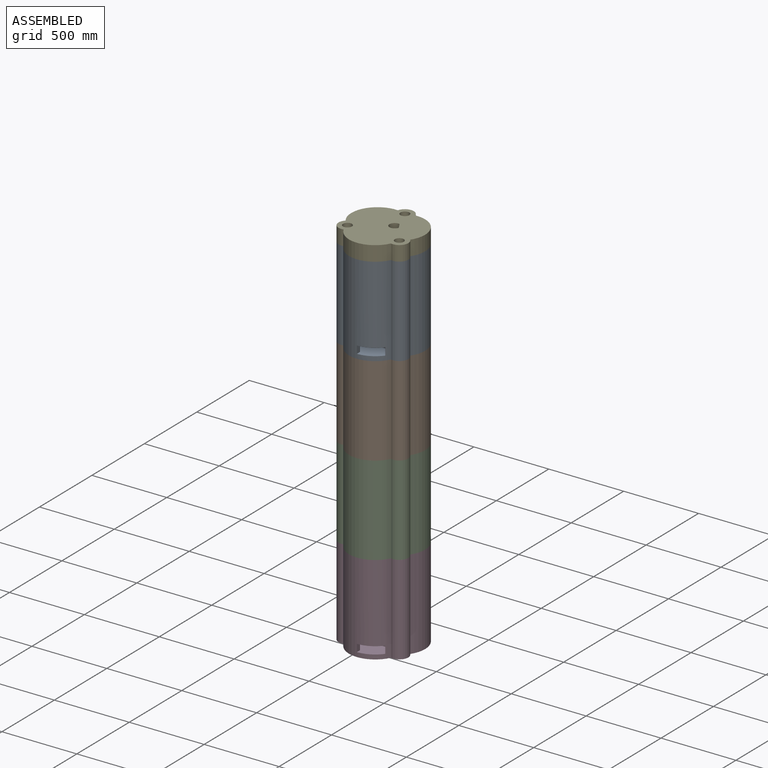
[diagram: assembled view]
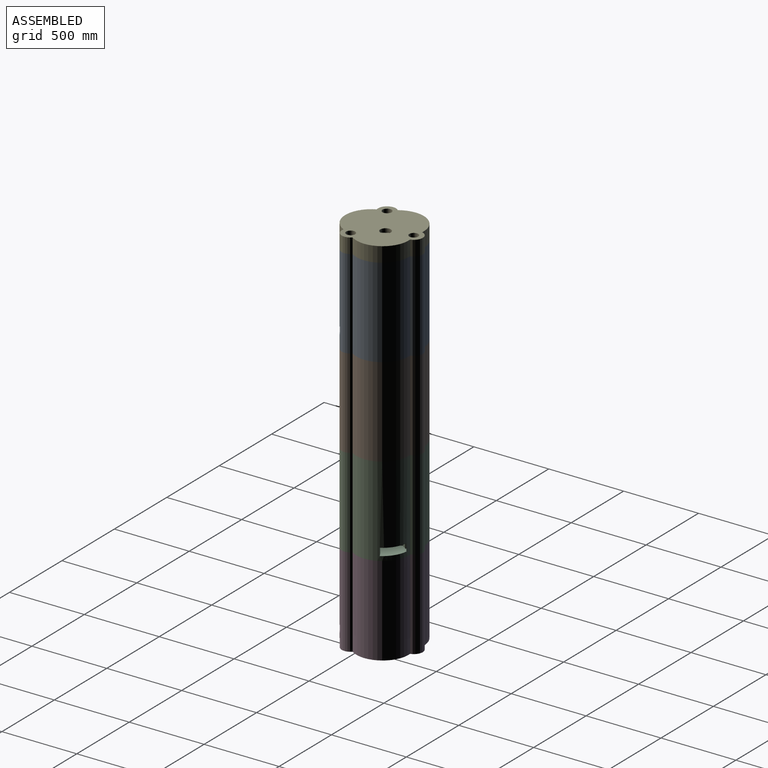
[diagram: assembled view, second angle]
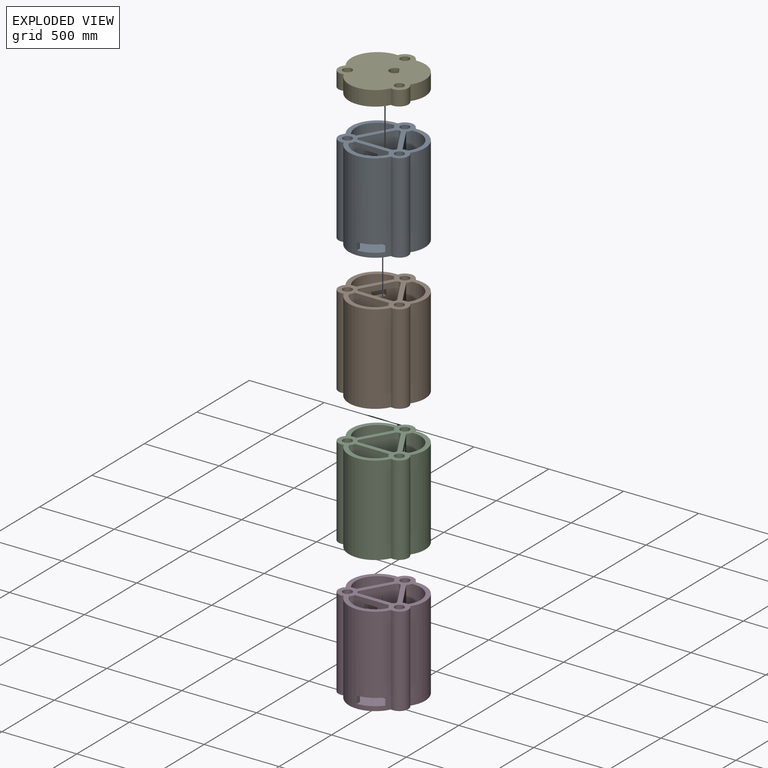
[diagram: exploded view]
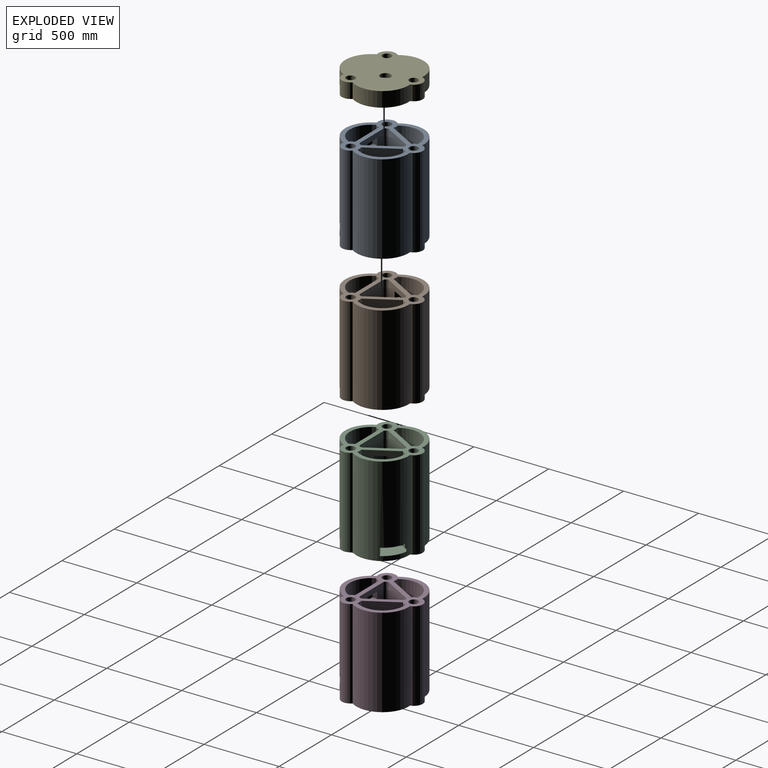
[diagram: exploded view, second angle]
ASSEMBLY  parts=5 mates=12
PART A: 48 faces, bbox 492.9x517.5x600 mm
  f0: plane 600x216.51mm, normal (0,1,0), area 122117.5mm2, adj f6,f7,f8,f18,f38,f39,f44,f45
  f1: plane 570x216.51mm, normal (0,-1,0), area 119808.6mm2, adj f8,f26,f27,f30,f44,f45,f46,f47
  f2: cylinder r=145mm len=570mm, axis (0,0,-1), area 180223.5mm2, adj f8,f26,f28,f29,f41,f42,f43
  f3: plane 575x187.5mm, normal (0.87,-0.5,0), area 124491.2mm2, adj f5,f7,f8,f39
  f4: plane 575x187.5mm, normal (-0.87,-0.5,0), area 124491.2mm2, adj f5,f6,f8,f39
  f5: cylinder r=20mm len=575mm, axis (0,0,1), area 24085.5mm2, adj f3,f4,f8,f39
  f6: cylinder r=20mm len=575mm, axis (0,0,1), area 24085.5mm2, adj f0,f4,f8,f39
  f7: cylinder r=20mm len=575mm, axis (0,0,1), area 24085.5mm2, adj f0,f3,f8,f39
  f8: plane 517.5x492.89mm, normal (0,0,1), area 78064.3mm2, adj f0,f1,f2,f3,f4,f5,f6,f7
  f9: cylinder r=60mm len=600mm, axis (0,0,-1), area 94004.3mm2, adj f8,f10,f17,f18
  f10: cylinder r=175mm len=600mm, axis (0,0,-1), area 236181mm2, adj f8,f9,f11,f18
  f11: cylinder r=60mm len=600mm, axis (0,0,-1), area 94004.3mm2, adj f8,f10,f12,f18
  f12: cylinder r=175mm len=600mm, axis (0,0,-1), area 228067.2mm2, adj f8,f11,f13,f18,f26,f40,f41,f42
  f13: cylinder r=60mm len=600mm, axis (0,0,-1), area 94004.3mm2, adj f8,f12,f17,f18
  f14: cylinder r=30mm len=600mm, axis (0,0,-1), area 113097.3mm2, adj f8,f18
  f15: cylinder r=30mm len=600mm, axis (0,0,-1), area 113097.3mm2, adj f8,f18
  f16: cylinder r=30mm len=600mm, axis (0,0,-1), area 113097.3mm2, adj f8,f18
  f17: cylinder r=175mm len=600mm, axis (0,0,-1), area 236181mm2, adj f8,f9,f13,f18
  f18: plane 517.5x492.89mm, normal (0,0,-1), area 179252.8mm2, adj f0,f9,f10,f11,f12,f13,f14,f15
  f19: cylinder r=50mm len=570mm, axis (0,0,1), area 3536.2mm2, adj f8,f20,f21,f23
  f20: cylinder r=60mm len=570mm, axis (0,0,-1), area 20600.3mm2, adj f8,f19,f22,f23
  f21: plane 570x187.5mm, normal (-0.87,0.5,0), area 123408.6mm2, adj f8,f19,f23,f24
  f22: cylinder r=145mm len=570mm, axis (0,0,-1), area 188157.6mm2, adj f8,f20,f23,f25
  f23: plane 229.3x176.57mm, normal (0,0,1), area 23384.6mm2, adj f19,f20,f21,f22,f24,f25
  f24: cylinder r=50mm len=570mm, axis (0,0,1), area 3536.2mm2, adj f8,f21,f23,f25
  f25: cylinder r=60mm len=570mm, axis (0,0,-1), area 20600.3mm2, adj f8,f22,f23,f24
  f26: plane 271.65x145.38mm, normal (0,0,1), area 28403.7mm2, adj f1,f2,f12,f27,f28,f29,f30,f40
  f27: cylinder r=50mm len=570mm, axis (0,0,1), area 3536.2mm2, adj f1,f8,f26,f28
  f28: cylinder r=60mm len=570mm, axis (0,0,-1), area 20600.3mm2, adj f2,f8,f26,f27
  f29: cylinder r=60mm len=570mm, axis (0,0,-1), area 20600.3mm2, adj f2,f8,f26,f30
  f30: cylinder r=50mm len=570mm, axis (0,0,1), area 3536.2mm2, adj f1,f8,f26,f29
  f31: plane 570x187.5mm, normal (0.87,0.5,0), area 123408.6mm2, adj f8,f35,f36,f37
  f32: cylinder r=60mm len=570mm, axis (0,0,-1), area 20600.3mm2, adj f8,f34,f35,f36
  f33: cylinder r=60mm len=570mm, axis (0,0,-1), area 20600.3mm2, adj f8,f34,f35,f37
  f34: cylinder r=145mm len=570mm, axis (0,0,-1), area 188157.6mm2, adj f8,f32,f33,f35
  f35: plane 229.3x176.57mm, normal (0,0,1), area 23384.6mm2, adj f31,f32,f33,f34,f36,f37
  f36: cylinder r=50mm len=570mm, axis (0,0,1), area 3536.2mm2, adj f8,f31,f32,f35
  f37: cylinder r=50mm len=570mm, axis (0,0,1), area 3536.2mm2, adj f8,f31,f33,f35
  f38: cylinder r=35mm len=70mm, axis (0,0,-1), area 4139mm2, adj f0,f18,f39
  f39: plane 256.51x227.5mm, normal (0,0,1), area 31034.8mm2, adj f0,f3,f4,f5,f6,f7,f38
  f40: plane 50x38.5mm, normal (-1,0,0), area 1925mm2, adj f12,f26,f41,f43
  f41: plane 140x108.5mm, normal (0,0,-1), area 5019.1mm2, adj f2,f12,f40,f42,f43
  f42: plane 50x30mm, normal (1,0,0), area 1500mm2, adj f2,f12,f26,f41
  f43: plane 50x11.15mm, normal (0,-1,0), area 557.4mm2, adj f2,f26,f40,f41
  f44: plane 90x30mm, normal (0,0,-1), area 2700mm2, adj f0,f1,f45,f47
  f45: plane 40x30mm, normal (1,0,0), area 1200mm2, adj f0,f1,f44,f46
  f46: plane 90x30mm, normal (0,0,1), area 2700mm2, adj f0,f1,f45,f47
  f47: plane 40x30mm, normal (-1,0,0), area 1200mm2, adj f0,f1,f44,f46
PART B: same geometry as A
PART C: same geometry as A
PART D: same geometry as A
PART E: 13 faces, bbox 492.9x517.5x100 mm
  f0: cylinder r=60mm len=115.81mm, axis (0,0,-1), area 15667.4mm2, adj f1,f10,f11,f12
  f1: cylinder r=175mm len=273.97mm, axis (0,0,-1), area 39363.5mm2, adj f0,f2,f11,f12
  f2: cylinder r=60mm len=102.28mm, axis (0,0,-1), area 15667.4mm2, adj f1,f3,f11,f12
  f3: cylinder r=175mm len=315.74mm, axis (0,0,-1), area 39363.5mm2, adj f2,f4,f11,f12
  f4: cylinder r=60mm len=102.28mm, axis (0,0,-1), area 15667.4mm2, adj f3,f10,f11,f12
  f5: plane 100x43.42mm, normal (-0.87,-0.5,0), area 5013.9mm2, adj f6,f11,f12
  f6: cylinder r=35mm len=100mm, axis (0,0,-1), area 16402.1mm2, adj f5,f11,f12
  f7: cylinder r=30mm len=100mm, axis (0,0,-1), area 18849.6mm2, adj f11,f12
  f8: cylinder r=30mm len=100mm, axis (0,0,-1), area 18849.6mm2, adj f11,f12
  f9: cylinder r=30mm len=100mm, axis (0,0,-1), area 18849.6mm2, adj f11,f12
  f10: cylinder r=175mm len=273.97mm, axis (0,0,-1), area 39363.5mm2, adj f0,f4,f11,f12
  f11: plane 517.5x492.89mm, normal (0,0,1), area 179279.8mm2, adj f0,f1,f2,f3,f4,f5,f6,f7
  f12: plane 517.5x492.89mm, normal (0,0,-1), area 179279.8mm2, adj f0,f1,f2,f3,f4,f5,f6,f7
PLACE A t=(0,0,1800)mm
PLACE B rot(axis=(0,0,-1),120deg) t=(0,0,1200)mm
PLACE C rot(axis=(0,0,1),120deg) t=(0,0,600)mm
PLACE D at identity fixed
PLACE E t=(-0.16,-0.41,2400)mm
MATE cylindrical B.f11 <-> C.f13  axis (0,0,-1) through (0,200,1200)mm
MATE cylindrical B.f13 <-> C.f14  axis (0,0,-1) through (-173.21,-100,1200)mm
MATE cylindrical C.f13 <-> D.f14  axis (0,0,-1) through (0,200,1200)mm
MATE cylindrical C.f14 <-> D.f11  axis (0,0,-1) through (-173.21,-100,1200)mm
MATE planar B.f10 <-> C.f8  axis (0,0,-1) through (71.45,41.25,1200)mm
MATE planar A.f18 <-> B.f8  axis (0,0,-1) through (0.54,1.07,1800)mm
MATE cylindrical E.f2 <-> A.f11  axis (0,0,-1) through (-173.21,-100,2400)mm
MATE cylindrical A.f14 <-> B.f11  axis (0,0,-1) through (0,200,1800)mm
MATE cylindrical A.f13 <-> B.f14  axis (0,0,-1) through (173.21,-100,1800)mm
MATE planar C.f17 <-> D.f8  axis (0,0,-1) through (-71.45,41.25,600)mm
MATE cylindrical E.f4 <-> A.f13  axis (0,0,-1) through (173.21,-100,2400)mm
MATE planar E.f12 <-> A.f8  axis (0,0,-1) through (-0.78,-0.78,2400)mm
